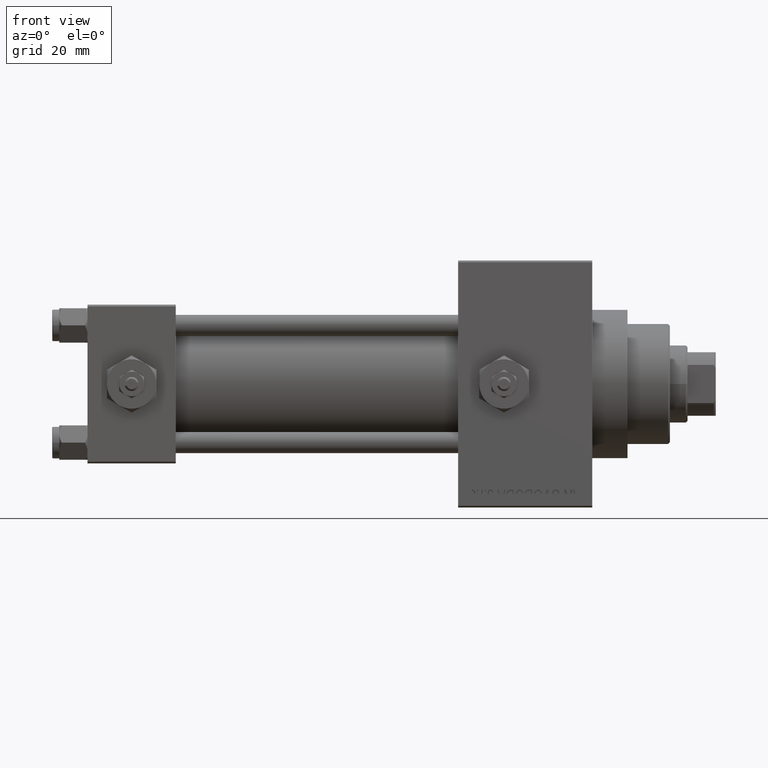
[diagram: clean part render]
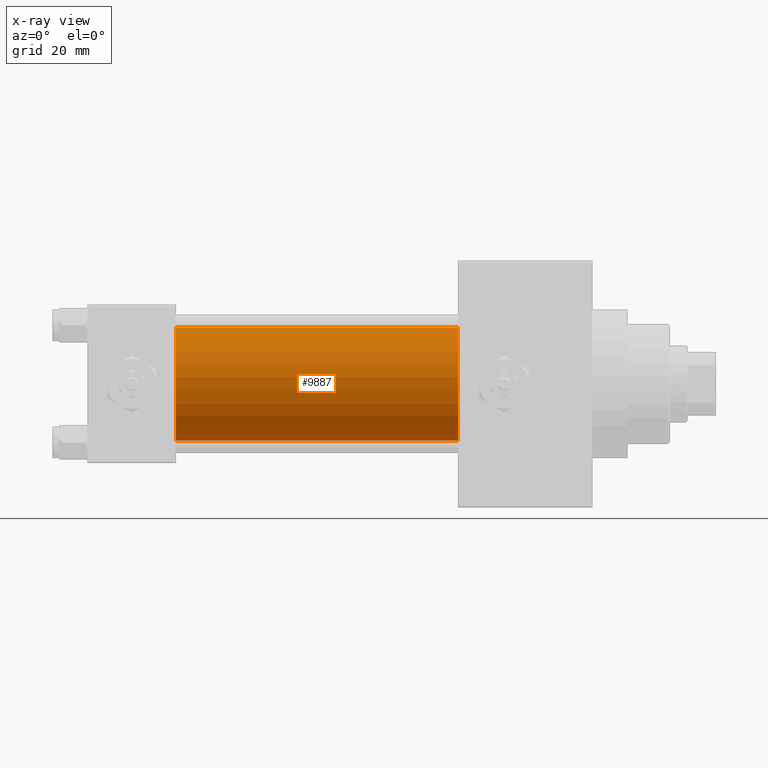
[diagram: x-ray — body ghosted, one internal face saturated and labeled with its STEP entity id]
A machine part, front view, then the same camera in x-ray: the body is ghosted and one INTERNAL B-rep face — a face not visible from any outside direction — is saturated and labeled: STEP entity #9887.
In plain terms, the highlighted cylindrical surface (partial cylindrical patch) has radius 16 mm, axis along (-1, -0, -0).
Its self-contained STEP definition (entity closure, byte-faithful):
#2556 = AXIS2_PLACEMENT_3D ( 'NONE', #43906, #9876, #9128 ) ;
#3356 = CARTESIAN_POINT ( 'NONE',  ( 105.0000000000000142, -2.602085213965210642E-15, 16.00000000000000000 ) ) ;
#3935 = DIRECTION ( 'NONE',  ( 0.000000000000000000, 0.000000000000000000, -1.000000000000000000 ) ) ;
#7432 = DIRECTION ( 'NONE',  ( 1.000000000000000000, 0.000000000000000000, 0.000000000000000000 ) ) ;
#8308 = AXIS2_PLACEMENT_3D ( 'NONE', #11631, #7432, #3935 ) ;
#9128 = DIRECTION ( 'NONE',  ( 0.000000000000000000, 0.000000000000000000, 1.000000000000000000 ) ) ;
#9876 = DIRECTION ( 'NONE',  ( -1.000000000000000000, -0.000000000000000000, -0.000000000000000000 ) ) ;
#9887 = ADVANCED_FACE ( 'NONE', ( #17307 ), #47627, .F. ) ;
#11631 = CARTESIAN_POINT ( 'NONE',  ( 105.0000000000000142, -2.602085213965210642E-15, 0.000000000000000000 ) ) ;
#15638 = CARTESIAN_POINT ( 'NONE',  ( 25.00000000000000000, -6.426503353294456087E-16, -16.00000000000000000 ) ) ;
#16227 = VERTEX_POINT ( 'NONE', #29598 ) ;
#17307 = FACE_OUTER_BOUND ( 'NONE', #29317, .T. ) ;
#17663 = EDGE_CURVE ( 'NONE', #16227, #29374, #29758, .T. ) ;
#19548 = LINE ( 'NONE', #31480, #35209 ) ;
#23933 = ORIENTED_EDGE ( 'NONE', *, *, #47930, .T. ) ;
#25158 = CARTESIAN_POINT ( 'NONE',  ( 105.0000000000000142, -6.426503353294456087E-16, -16.00000000000000000 ) ) ;
#27000 = CARTESIAN_POINT ( 'NONE',  ( 25.00000000000000000, -2.602085213965210642E-15, 0.000000000000000000 ) ) ;
#29317 = EDGE_LOOP ( 'NONE', ( #39946, #23933, #30773, #46231 ) ) ;
#29374 = VERTEX_POINT ( 'NONE', #25158 ) ;
#29598 = CARTESIAN_POINT ( 'NONE',  ( 105.0000000000000142, -2.602085213965210642E-15, 16.00000000000000000 ) ) ;
#29758 = CIRCLE ( 'NONE', #8308, 16.00000000000000000 ) ;
#29909 = EDGE_CURVE ( 'NONE', #32495, #33302, #30429, .T. ) ;
#30429 = CIRCLE ( 'NONE', #44733, 16.00000000000000000 ) ;
#30773 = ORIENTED_EDGE ( 'NONE', *, *, #29909, .F. ) ;
#31275 = CARTESIAN_POINT ( 'NONE',  ( 25.00000000000000000, -2.602085213965210642E-15, 16.00000000000000000 ) ) ;
#31480 = CARTESIAN_POINT ( 'NONE',  ( 105.0000000000000142, -6.426503353294456087E-16, -16.00000000000000000 ) ) ;
#32495 = VERTEX_POINT ( 'NONE', #31275 ) ;
#33302 = VERTEX_POINT ( 'NONE', #15638 ) ;
#35202 = DIRECTION ( 'NONE',  ( -1.000000000000000000, -0.000000000000000000, -0.000000000000000000 ) ) ;
#35209 = VECTOR ( 'NONE', #35202, 1000.000000000000000 ) ;
#39946 = ORIENTED_EDGE ( 'NONE', *, *, #17663, .T. ) ;
#41537 = VECTOR ( 'NONE', #44618, 1000.000000000000000 ) ;
#43906 = CARTESIAN_POINT ( 'NONE',  ( 105.0000000000000142, -2.602085213965210642E-15, 0.000000000000000000 ) ) ;
#44618 = DIRECTION ( 'NONE',  ( -1.000000000000000000, -0.000000000000000000, -0.000000000000000000 ) ) ;
#44733 = AXIS2_PLACEMENT_3D ( 'NONE', #27000, #46617, #46372 ) ;
#45586 = LINE ( 'NONE', #3356, #41537 ) ;
#46231 = ORIENTED_EDGE ( 'NONE', *, *, #47037, .F. ) ;
#46372 = DIRECTION ( 'NONE',  ( 0.000000000000000000, 0.000000000000000000, -1.000000000000000000 ) ) ;
#46617 = DIRECTION ( 'NONE',  ( 1.000000000000000000, 0.000000000000000000, 0.000000000000000000 ) ) ;
#47037 = EDGE_CURVE ( 'NONE', #16227, #32495, #45586, .T. ) ;
#47627 = CYLINDRICAL_SURFACE ( 'NONE', #2556, 16.00000000000000000 ) ;
#47930 = EDGE_CURVE ( 'NONE', #29374, #33302, #19548, .T. ) ;